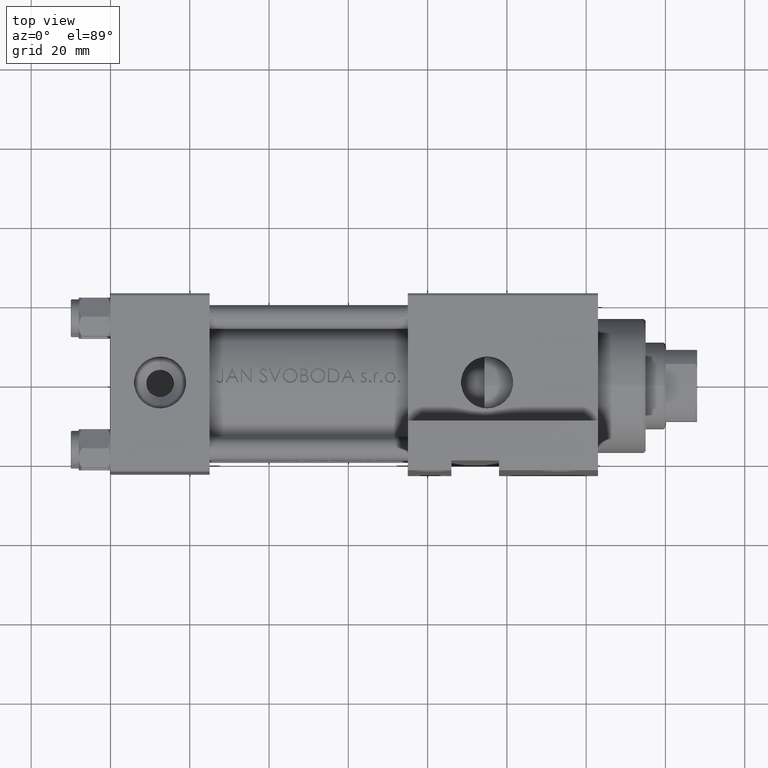
[diagram: clean part render]
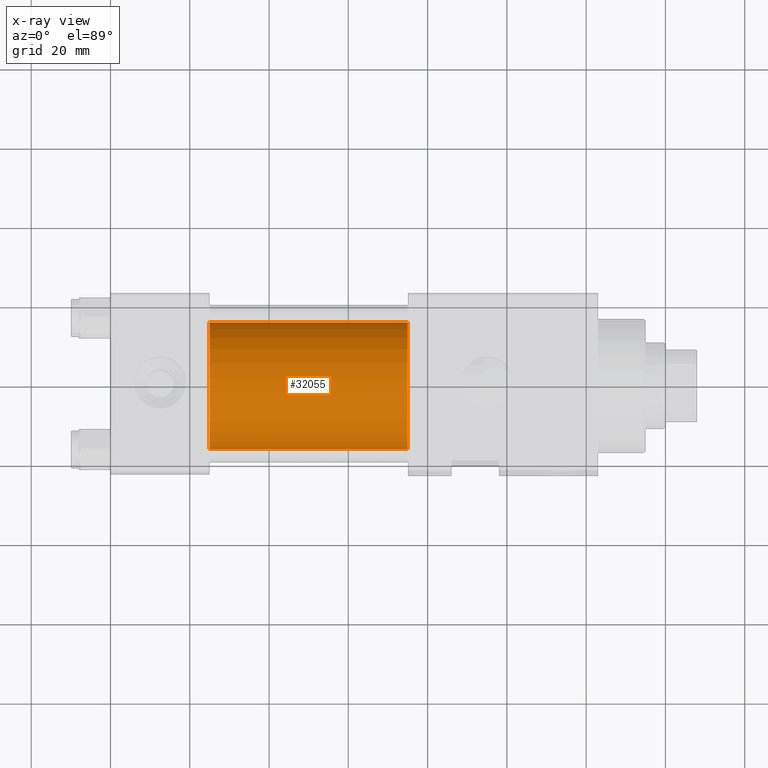
[diagram: x-ray — body ghosted, one internal face saturated and labeled with its STEP entity id]
A machine part, top view, then the same camera in x-ray: the body is ghosted and one INTERNAL B-rep face — a face not visible from any outside direction — is saturated and labeled: STEP entity #32055.
In plain terms, the highlighted cylindrical surface (partial cylindrical patch) has radius 16 mm, axis along (-1, -0, 0).
Its self-contained STEP definition (entity closure, byte-faithful):
#2197 = VECTOR ( 'NONE', #36928, 1000.000000000000000 ) ;
#3896 = CARTESIAN_POINT ( 'NONE',  ( 75.00000000000001421, 6.123233995736727825E-17, 15.50000000000000355 ) ) ;
#4288 = CARTESIAN_POINT ( 'NONE',  ( 25.00000000000000000, 2.020667218593132311E-15, -16.49999999999999645 ) ) ;
#6985 = EDGE_CURVE ( 'NONE', #24397, #48335, #30726, .T. ) ;
#7499 = VERTEX_POINT ( 'NONE', #4288 ) ;
#9200 = AXIS2_PLACEMENT_3D ( 'NONE', #20198, #46177, #27939 ) ;
#10697 = LINE ( 'NONE', #37430, #2197 ) ;
#11704 = EDGE_CURVE ( 'NONE', #48335, #7499, #10697, .T. ) ;
#12590 = CARTESIAN_POINT ( 'NONE',  ( 75.00000000000001421, 2.020667218593132311E-15, -16.49999999999999645 ) ) ;
#12802 = FACE_OUTER_BOUND ( 'NONE', #12926, .T. ) ;
#12926 = EDGE_LOOP ( 'NONE', ( #15692, #14545, #47358, #36132 ) ) ;
#14545 = ORIENTED_EDGE ( 'NONE', *, *, #11704, .T. ) ;
#15692 = ORIENTED_EDGE ( 'NONE', *, *, #6985, .T. ) ;
#16421 = VECTOR ( 'NONE', #30867, 1000.000000000000000 ) ;
#19773 = CIRCLE ( 'NONE', #46060, 16.00000000000000000 ) ;
#20198 = CARTESIAN_POINT ( 'NONE',  ( 75.00000000000001421, 6.123233995736727825E-17, -0.4999999999999970024 ) ) ;
#22882 = LINE ( 'NONE', #42122, #16421 ) ;
#24397 = VERTEX_POINT ( 'NONE', #3896 ) ;
#25961 = DIRECTION ( 'NONE',  ( 1.000000000000000000, 0.000000000000000000, 0.000000000000000000 ) ) ;
#27794 = EDGE_CURVE ( 'NONE', #43873, #7499, #19773, .T. ) ;
#27939 = DIRECTION ( 'NONE',  ( 0.000000000000000000, 0.000000000000000000, -1.000000000000000000 ) ) ;
#28761 = CARTESIAN_POINT ( 'NONE',  ( 75.00000000000001421, 6.123233995736727825E-17, -0.4999999999999970024 ) ) ;
#28984 = CARTESIAN_POINT ( 'NONE',  ( 25.00000000000000000, 6.123233995736727825E-17, -0.4999999999999970024 ) ) ;
#29474 = DIRECTION ( 'NONE',  ( 0.000000000000000000, 0.000000000000000000, -1.000000000000000000 ) ) ;
#30726 = CIRCLE ( 'NONE', #9200, 16.00000000000000000 ) ;
#30867 = DIRECTION ( 'NONE',  ( -1.000000000000000000, -0.000000000000000000, -0.000000000000000000 ) ) ;
#32055 = ADVANCED_FACE ( 'NONE', ( #12802 ), #43503, .F. ) ;
#35531 = DIRECTION ( 'NONE',  ( -1.000000000000000000, -0.000000000000000000, -0.000000000000000000 ) ) ;
#36132 = ORIENTED_EDGE ( 'NONE', *, *, #44359, .F. ) ;
#36928 = DIRECTION ( 'NONE',  ( -1.000000000000000000, -0.000000000000000000, -0.000000000000000000 ) ) ;
#37430 = CARTESIAN_POINT ( 'NONE',  ( 75.00000000000001421, 2.020667218593132311E-15, -16.49999999999999645 ) ) ;
#38136 = AXIS2_PLACEMENT_3D ( 'NONE', #28761, #35531, #43995 ) ;
#42122 = CARTESIAN_POINT ( 'NONE',  ( 75.00000000000001421, 6.123233995736727825E-17, 15.50000000000000355 ) ) ;
#42716 = CARTESIAN_POINT ( 'NONE',  ( 25.00000000000000000, 6.123233995736727825E-17, 15.50000000000000355 ) ) ;
#43503 = CYLINDRICAL_SURFACE ( 'NONE', #38136, 16.00000000000000000 ) ;
#43873 = VERTEX_POINT ( 'NONE', #42716 ) ;
#43995 = DIRECTION ( 'NONE',  ( 0.000000000000000000, 0.000000000000000000, 1.000000000000000000 ) ) ;
#44359 = EDGE_CURVE ( 'NONE', #24397, #43873, #22882, .T. ) ;
#46060 = AXIS2_PLACEMENT_3D ( 'NONE', #28984, #25961, #29474 ) ;
#46177 = DIRECTION ( 'NONE',  ( 1.000000000000000000, 0.000000000000000000, 0.000000000000000000 ) ) ;
#47358 = ORIENTED_EDGE ( 'NONE', *, *, #27794, .F. ) ;
#48335 = VERTEX_POINT ( 'NONE', #12590 ) ;